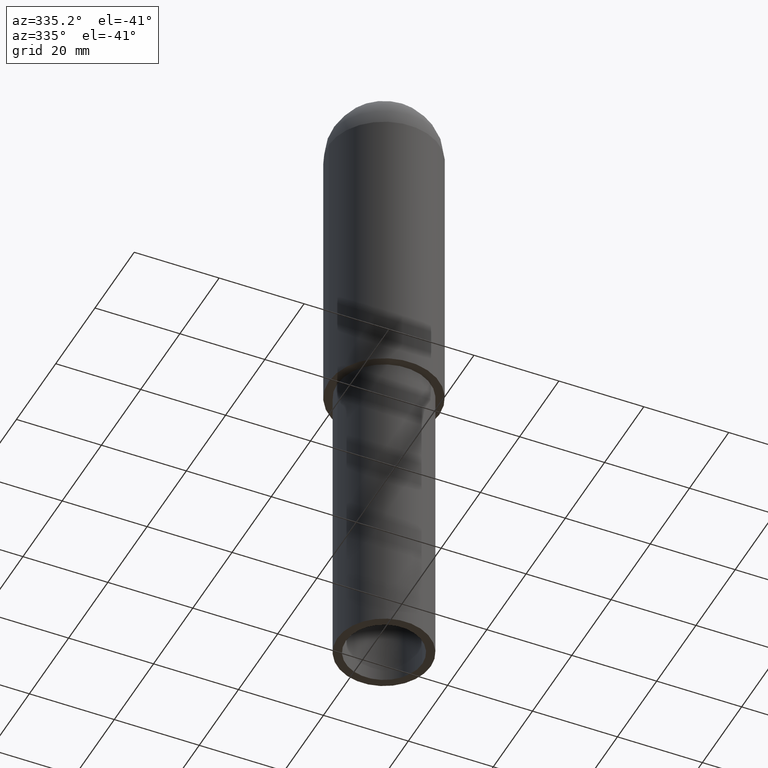
[diagram: clean part render]
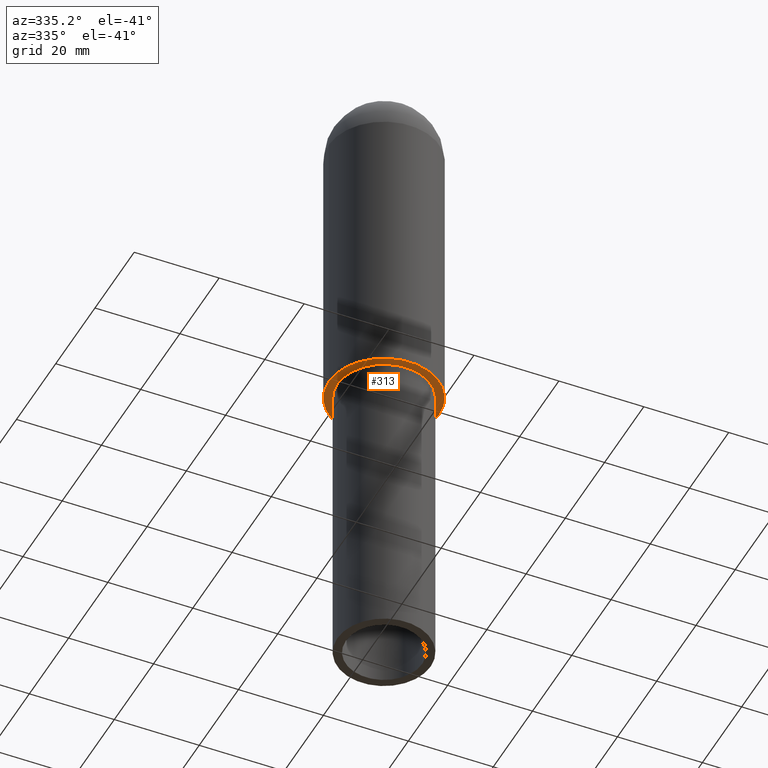
[diagram: same view with one face highlighted and labeled with its STEP entity id]
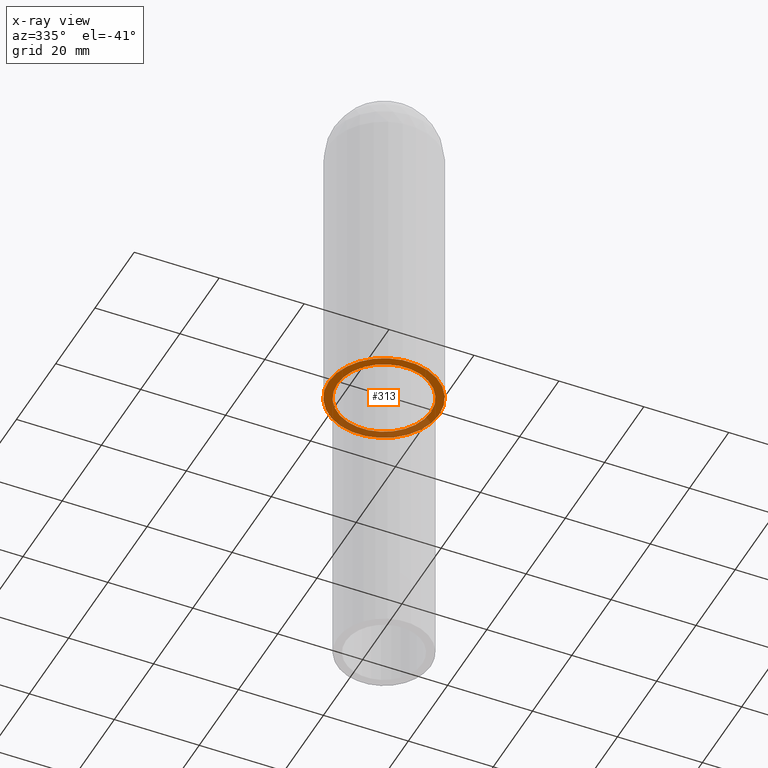
[diagram: x-ray of the same camera — body ghosted, the highlighted face saturated]
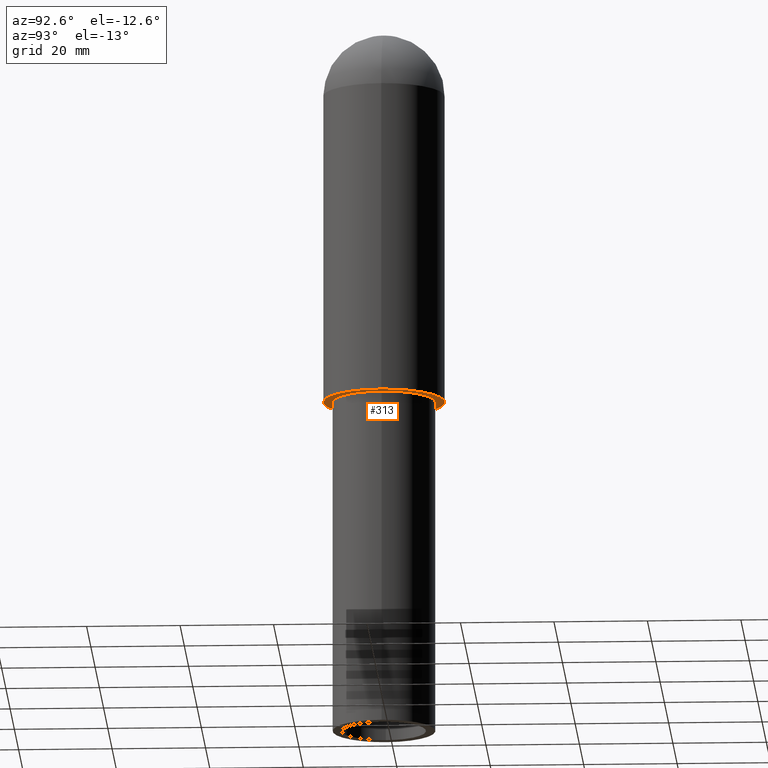
[diagram: same view with one face highlighted and labeled with its STEP entity id]
A machine part, auxiliary view. The second image highlights one B-rep face of the part: STEP entity #313.
The next image is the same camera in x-ray: the body ghosted, the highlighted face saturated — about 29% of this face is hidden behind the body in this view.
A second angle (auxiliary view) of the same face is appended — the face is thin or edge-on in the first view.
In plain terms, the highlighted planar face has unit normal (0, 0, -1).
Its self-contained STEP definition (entity closure, byte-faithful):
#51=CARTESIAN_POINT('',(-6.716946060098080,-1.613904443833870,72.0));
#52=VERTEX_POINT('',#51);
#68=CARTESIAN_POINT('',(15.283053939901915,-1.613904443833868,72.0));
#69=VERTEX_POINT('',#68);
#76=CARTESIAN_POINT('',(4.283053939901920,-1.613904443833871,72.0));
#77=DIRECTION('',(0.0,0.0,-1.0));
#78=DIRECTION('',(-1.0,0.0,0.0));
#79=AXIS2_PLACEMENT_3D('',#76,#77,#78);
#80=CIRCLE('',#79,11.0);
#81=EDGE_CURVE('',#69,#52,#80,.T.);
#207=CARTESIAN_POINT('',(-8.716946060098085,-1.613904443833868,72.0));
#208=VERTEX_POINT('',#207);
#217=CARTESIAN_POINT('',(17.283053939901919,-1.613904443833868,72.0));
#218=VERTEX_POINT('',#217);
#219=CARTESIAN_POINT('',(4.283053939901916,-1.613904443833869,72.0));
#220=DIRECTION('',(0.0,0.0,-1.0));
#221=DIRECTION('',(-1.0,0.0,0.0));
#222=AXIS2_PLACEMENT_3D('',#219,#220,#221);
#223=CIRCLE('',#222,13.0);
#224=EDGE_CURVE('',#218,#208,#223,.T.);
#284=CARTESIAN_POINT('',(4.283053939901916,-1.613904443833869,72.0));
#285=DIRECTION('',(0.0,0.0,-1.0));
#286=DIRECTION('',(-1.0,0.0,0.0));
#287=AXIS2_PLACEMENT_3D('',#284,#285,#286);
#288=CIRCLE('',#287,13.0);
#289=EDGE_CURVE('',#208,#218,#288,.T.);
#294=CARTESIAN_POINT('',(4.283053939901916,-1.613904443833869,72.0));
#295=DIRECTION('',(0.0,0.0,-1.0));
#296=DIRECTION('',(-1.0,0.0,0.0));
#297=AXIS2_PLACEMENT_3D('',#294,#295,#296);
#298=PLANE('',#297);
#299=ORIENTED_EDGE('',*,*,#224,.T.);
#300=ORIENTED_EDGE('',*,*,#289,.T.);
#301=EDGE_LOOP('',(#299,#300));
#302=FACE_OUTER_BOUND('',#301,.T.);
#303=ORIENTED_EDGE('',*,*,#81,.F.);
#304=CARTESIAN_POINT('',(4.283053939901920,-1.613904443833871,72.0));
#305=DIRECTION('',(0.0,0.0,-1.0));
#306=DIRECTION('',(-1.0,0.0,0.0));
#307=AXIS2_PLACEMENT_3D('',#304,#305,#306);
#308=CIRCLE('',#307,11.0);
#309=EDGE_CURVE('',#52,#69,#308,.T.);
#310=ORIENTED_EDGE('',*,*,#309,.F.);
#311=EDGE_LOOP('',(#303,#310));
#312=FACE_BOUND('',#311,.T.);
#313=ADVANCED_FACE('',(#302,#312),#298,.T.);